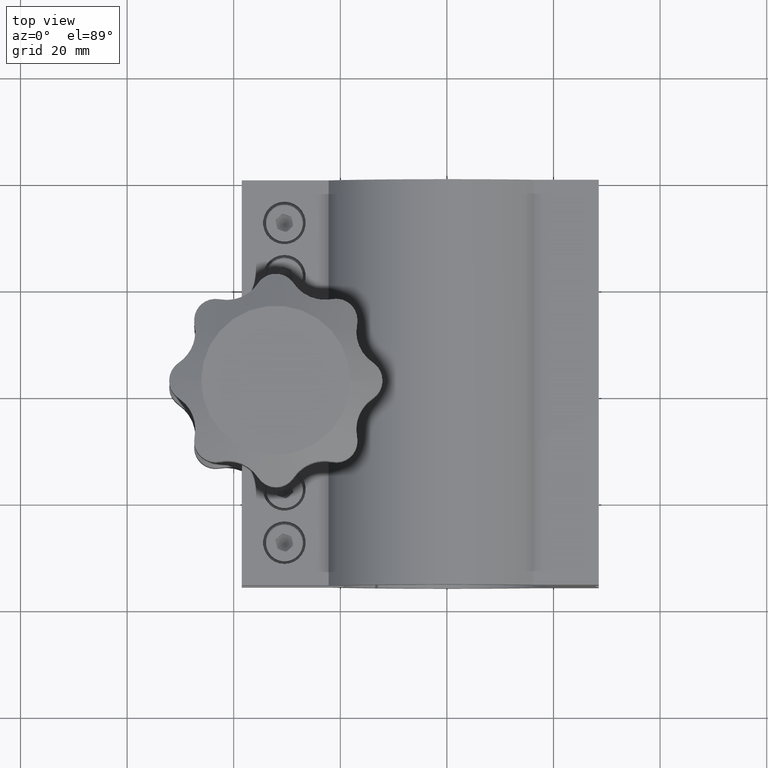
[diagram: clean part render]
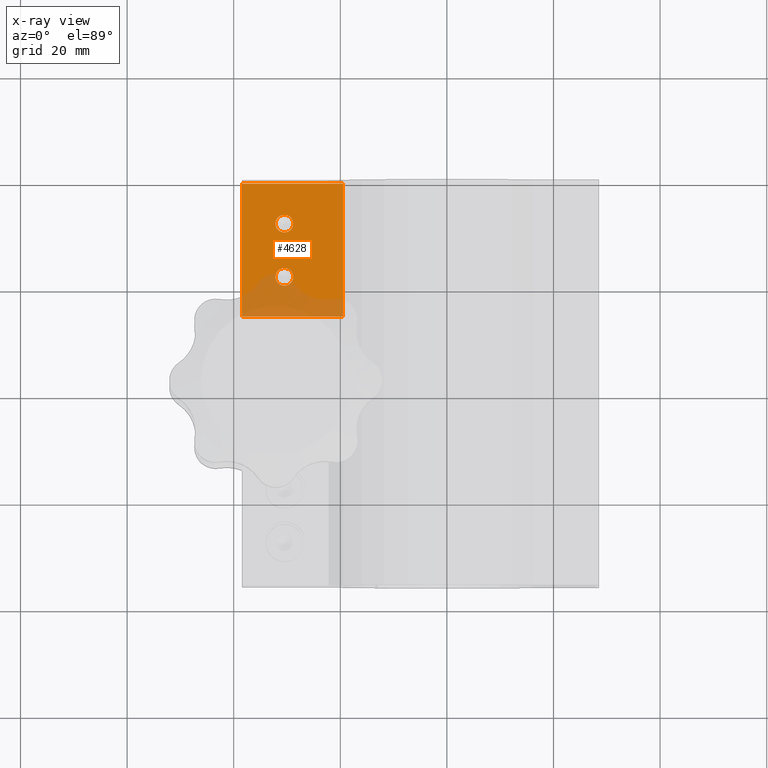
[diagram: x-ray — body ghosted, one internal face saturated and labeled with its STEP entity id]
A machine part, top view, then the same camera in x-ray: the body is ghosted and one INTERNAL B-rep face — a face not visible from any outside direction — is saturated and labeled: STEP entity #4628.
In plain terms, the highlighted planar face has unit normal (-0, 0, -1).
Its self-contained STEP definition (entity closure, byte-faithful):
#58 = ORIENTED_EDGE ( 'NONE', *, *, #2136, .F. ) ;
#205 = VERTEX_POINT ( 'NONE', #9269 ) ;
#513 = ORIENTED_EDGE ( 'NONE', *, *, #563, .T. ) ;
#563 = EDGE_CURVE ( 'NONE', #2937, #8828, #2188, .T. ) ;
#982 = CIRCLE ( 'NONE', #7990, 1.649999999999991700 ) ;
#1064 = FACE_OUTER_BOUND ( 'NONE', #6680, .T. ) ;
#1575 = VECTOR ( 'NONE', #5682, 1000.000000000000000 ) ;
#1681 = VERTEX_POINT ( 'NONE', #2806 ) ;
#1685 = CARTESIAN_POINT ( 'NONE',  ( -38.49999999999986500, -25.50000000000016700, 5.000000000000114600 ) ) ;
#1938 = AXIS2_PLACEMENT_3D ( 'NONE', #9108, #4231, #5041 ) ;
#2136 = EDGE_CURVE ( 'NONE', #7492, #7944, #4283, .T. ) ;
#2188 = LINE ( 'NONE', #9905, #4125 ) ;
#2204 = VERTEX_POINT ( 'NONE', #2867 ) ;
#2258 = DIRECTION ( 'NONE',  ( -1.000000000000000000, 2.102695122396149300E-015, 0.0000000000000000000 ) ) ;
#2360 = DIRECTION ( 'NONE',  ( -1.000000000000000000, 2.102695122396149300E-015, 0.0000000000000000000 ) ) ;
#2478 = ORIENTED_EDGE ( 'NONE', *, *, #7820, .F. ) ;
#2806 = CARTESIAN_POINT ( 'NONE',  ( -28.84999999999994800, -8.000000000000126100, 4.999999999999998200 ) ) ;
#2867 = CARTESIAN_POINT ( 'NONE',  ( -28.84999999999991300, -18.00000000000019200, 4.999999999999997300 ) ) ;
#2937 = VERTEX_POINT ( 'NONE', #6280 ) ;
#3232 = VERTEX_POINT ( 'NONE', #10750 ) ;
#3396 = CIRCLE ( 'NONE', #1938, 1.649999999999991700 ) ;
#3662 = EDGE_CURVE ( 'NONE', #7944, #8828, #7400, .T. ) ;
#3680 = DIRECTION ( 'NONE',  ( -1.000000000000000000, 3.154042683594210600E-015, 0.0000000000000000000 ) ) ;
#3715 = DIRECTION ( 'NONE',  ( 1.325526544823969000E-016, -8.314313866055765200E-017, 1.000000000000000000 ) ) ;
#3894 = CARTESIAN_POINT ( 'NONE',  ( -30.49999999999990100, -18.00000000000018800, 4.999999999999997300 ) ) ;
#4058 = CIRCLE ( 'NONE', #8860, 1.649999999999984800 ) ;
#4125 = VECTOR ( 'NONE', #6596, 1000.000000000000000 ) ;
#4163 = EDGE_LOOP ( 'NONE', ( #9564, #4205 ) ) ;
#4205 = ORIENTED_EDGE ( 'NONE', *, *, #6256, .F. ) ;
#4231 = DIRECTION ( 'NONE',  ( 1.325526544823969000E-016, -8.314313866055765200E-017, 1.000000000000000000 ) ) ;
#4283 = LINE ( 'NONE', #5138, #5865 ) ;
#4404 = EDGE_CURVE ( 'NONE', #2204, #205, #6771, .T. ) ;
#4628 = ADVANCED_FACE ( 'NONE', ( #9396, #6639, #1064 ), #6797, .F. ) ;
#4796 = DIRECTION ( 'NONE',  ( 1.325526544823969000E-016, -8.314313866055765200E-017, 1.000000000000000000 ) ) ;
#4833 = VECTOR ( 'NONE', #8457, 1000.000000000000000 ) ;
#4911 = CARTESIAN_POINT ( 'NONE',  ( -38.49999999999986500, -25.50000000000016700, 5.000000000000114600 ) ) ;
#5041 = DIRECTION ( 'NONE',  ( -1.000000000000000000, 3.154042683594210600E-015, 0.0000000000000000000 ) ) ;
#5096 = LINE ( 'NONE', #6776, #4833 ) ;
#5138 = CARTESIAN_POINT ( 'NONE',  ( -19.49999999999986500, -25.50000000000022700, 4.999999999999995600 ) ) ;
#5682 = DIRECTION ( 'NONE',  ( -2.543104615781996800E-015, 1.000000000000000000, 8.314313866055995700E-017 ) ) ;
#5759 = EDGE_CURVE ( 'NONE', #3232, #1681, #3396, .T. ) ;
#5838 = CARTESIAN_POINT ( 'NONE',  ( -19.49999999999986500, -25.50000000000022700, 4.999999999999995600 ) ) ;
#5865 = VECTOR ( 'NONE', #7709, 1000.000000000000000 ) ;
#5945 = CARTESIAN_POINT ( 'NONE',  ( -19.49999999999986500, -25.50000000000022700, 4.999999999999995600 ) ) ;
#6195 = ORIENTED_EDGE ( 'NONE', *, *, #3662, .F. ) ;
#6256 = EDGE_CURVE ( 'NONE', #1681, #3232, #982, .T. ) ;
#6280 = CARTESIAN_POINT ( 'NONE',  ( -19.49999999999993600, -0.5000000000001302300, 4.999999999999997300 ) ) ;
#6503 = CARTESIAN_POINT ( 'NONE',  ( -30.49999999999990100, -18.00000000000018800, 4.999999999999997300 ) ) ;
#6596 = DIRECTION ( 'NONE',  ( -1.000000000000000000, 2.896988204881273000E-015, 1.325526544823985800E-016 ) ) ;
#6639 = FACE_BOUND ( 'NONE', #4163, .T. ) ;
#6680 = EDGE_LOOP ( 'NONE', ( #513, #6195, #58, #8820 ) ) ;
#6717 = DIRECTION ( 'NONE',  ( -1.325526544823983300E-016, 8.314313866055765200E-017, -1.000000000000000000 ) ) ;
#6771 = CIRCLE ( 'NONE', #8882, 1.649999999999984800 ) ;
#6776 = CARTESIAN_POINT ( 'NONE',  ( -19.49999999999986500, -25.50000000000022700, 4.999999999999995600 ) ) ;
#6797 = PLANE ( 'NONE',  #9450 ) ;
#6876 = EDGE_LOOP ( 'NONE', ( #2478, #7588 ) ) ;
#7123 = CARTESIAN_POINT ( 'NONE',  ( -30.49999999999993600, -8.000000000000120800, 4.999999999999998200 ) ) ;
#7400 = LINE ( 'NONE', #1685, #1575 ) ;
#7492 = VERTEX_POINT ( 'NONE', #5945 ) ;
#7588 = ORIENTED_EDGE ( 'NONE', *, *, #4404, .F. ) ;
#7594 = DIRECTION ( 'NONE',  ( 1.000000000000000000, -2.896988204881273000E-015, -1.325526544823985800E-016 ) ) ;
#7709 = DIRECTION ( 'NONE',  ( -1.000000000000000000, 2.896988204881273000E-015, 1.325526544823985800E-016 ) ) ;
#7820 = EDGE_CURVE ( 'NONE', #205, #2204, #4058, .T. ) ;
#7944 = VERTEX_POINT ( 'NONE', #4911 ) ;
#7990 = AXIS2_PLACEMENT_3D ( 'NONE', #7123, #3715, #3680 ) ;
#8457 = DIRECTION ( 'NONE',  ( -2.543104615781996800E-015, 1.000000000000000000, 8.314313866055995700E-017 ) ) ;
#8588 = EDGE_CURVE ( 'NONE', #7492, #2937, #5096, .T. ) ;
#8820 = ORIENTED_EDGE ( 'NONE', *, *, #8588, .T. ) ;
#8828 = VERTEX_POINT ( 'NONE', #9057 ) ;
#8860 = AXIS2_PLACEMENT_3D ( 'NONE', #6503, #4796, #2360 ) ;
#8882 = AXIS2_PLACEMENT_3D ( 'NONE', #3894, #9710, #2258 ) ;
#9057 = CARTESIAN_POINT ( 'NONE',  ( -38.49999999999995000, -0.4999999999999950000, 5.000000000000000000 ) ) ;
#9108 = CARTESIAN_POINT ( 'NONE',  ( -30.49999999999993600, -8.000000000000120800, 4.999999999999998200 ) ) ;
#9269 = CARTESIAN_POINT ( 'NONE',  ( -32.14999999999988500, -18.00000000000018500, 4.999999999999997300 ) ) ;
#9396 = FACE_BOUND ( 'NONE', #6876, .T. ) ;
#9450 = AXIS2_PLACEMENT_3D ( 'NONE', #5838, #6717, #7594 ) ;
#9564 = ORIENTED_EDGE ( 'NONE', *, *, #5759, .F. ) ;
#9710 = DIRECTION ( 'NONE',  ( 1.325526544823969000E-016, -8.314313866055765200E-017, 1.000000000000000000 ) ) ;
#9905 = CARTESIAN_POINT ( 'NONE',  ( -19.49999999999993600, -0.5000000000001302300, 4.999999999999997300 ) ) ;
#10750 = CARTESIAN_POINT ( 'NONE',  ( -32.14999999999992800, -8.000000000000117200, 4.999999999999998200 ) ) ;